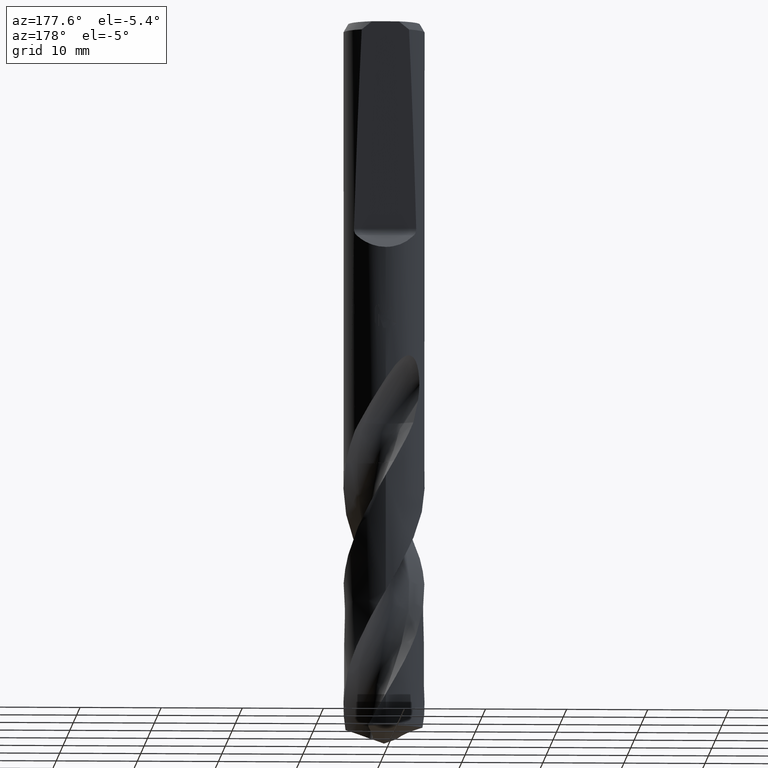
[diagram: clean part render]
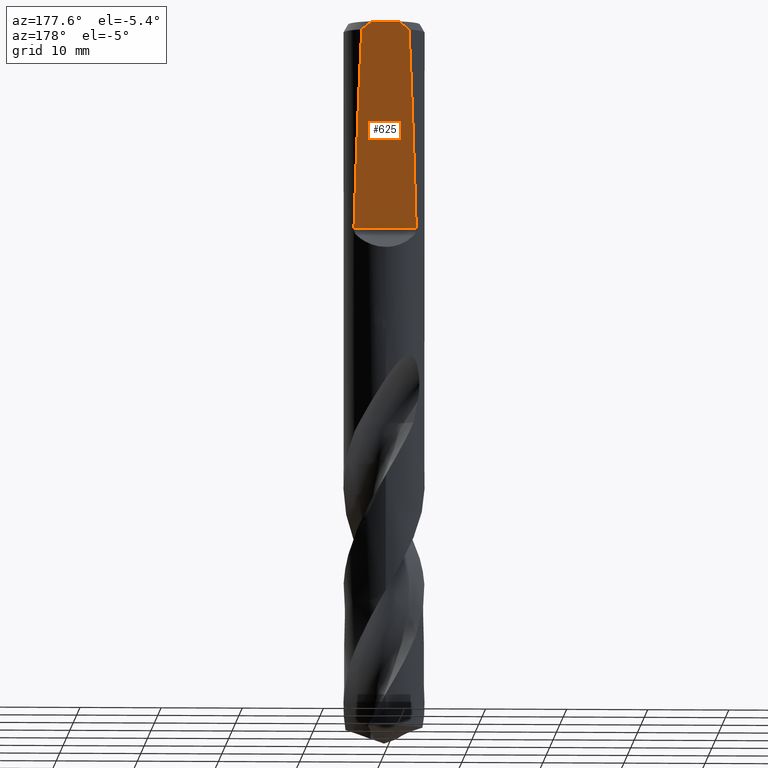
[diagram: same view with one face highlighted and labeled with its STEP entity id]
A machine part, auxiliary view. The second image highlights one B-rep face of the part: STEP entity #625.
In plain terms, the highlighted planar face has unit normal (0, -0.9994, 0.0349).
Its self-contained STEP definition (entity closure, byte-faithful):
#305=EDGE_CURVE('',#381,#743,#836,.T.);
#349=EDGE_CURVE('',#543,#563,#885,.T.);
#363=EDGE_CURVE('',#695,#543,#902,.T.);
#381=VERTEX_POINT('',#921);
#485=VERTEX_POINT('',#1038);
#543=VERTEX_POINT('',#1097);
#563=VERTEX_POINT('',#1117);
#589=EDGE_CURVE('',#743,#695,#1146,.T.);
#607=EDGE_CURVE('',#563,#485,#1168,.T.);
#617=EDGE_CURVE('',#485,#381,#1179,.T.);
#625=ADVANCED_FACE('',(#1189),#1190,.F.);
#695=VERTEX_POINT('',#1265);
#743=VERTEX_POINT('',#1316);
#836=LINE('',#1447,#1448);
#885=LINE('',#2118,#2119);
#902=(B_SPLINE_CURVE(2,(#2628,#2629,#2630),.UNSPECIFIED.,.F.,.F.)B_SPLINE_CURVE_WITH_KNOTS((3,3),(0.0,1.60437353928791),.UNSPECIFIED.)RATIONAL_B_SPLINE_CURVE((1.0,1.00802725721497,1.0))BOUNDED_CURVE()REPRESENTATION_ITEM('')GEOMETRIC_REPRESENTATION_ITEM()CURVE());
#921=CARTESIAN_POINT('',(-3.83705374969661,3.20577892593035,-25.5617638699384));
#1038=CARTESIAN_POINT('',(-2.91341920609476,4.0634946203432,-1.0));
#1097=CARTESIAN_POINT('',(1.66217385787441,4.09841538983495,0.0));
#1117=CARTESIAN_POINT('',(-1.66217385787441,4.09841538983495,0.0));
#1146=ELLIPSE('',#5453,143.26854173922,5.0);
#1168=(B_SPLINE_CURVE(2,(#6405,#6406,#6407),.UNSPECIFIED.,.F.,.F.)B_SPLINE_CURVE_WITH_KNOTS((3,3),(0.0,1.60437353928791),.UNSPECIFIED.)RATIONAL_B_SPLINE_CURVE((1.0,1.00802725721497,1.0))BOUNDED_CURVE()REPRESENTATION_ITEM('')GEOMETRIC_REPRESENTATION_ITEM()CURVE());
#1179=ELLIPSE('',#6510,143.26854173922,5.0);
#1189=FACE_OUTER_BOUND('',#6521,.T.);
#1190=PLANE('',#6522);
#1265=CARTESIAN_POINT('',(2.91341920609476,4.0634946203432,-1.0));
#1316=CARTESIAN_POINT('',(3.83705374969661,3.20577892593035,-25.5617638699384));
#1447=CARTESIAN_POINT('',(-5.0,3.20577892593035,-25.5617638699384));
#1448=VECTOR('',#7668,0.999999999999999);
#2118=CARTESIAN_POINT('',(-2.5,4.09841538983495,1.77635683940025E-015));
#2119=VECTOR('',#7731,1.0);
#2628=CARTESIAN_POINT('',(2.91341920609476,4.0634946203432,-0.999999999999998));
#2629=CARTESIAN_POINT('',(2.25150463839306,4.08572973590232,-0.36326959907412));
#2630=CARTESIAN_POINT('',(1.66217385787441,4.09841538983495,1.99840144432528E-015));
#5453=AXIS2_PLACEMENT_3D('',#7973,#7974,#7975);
#6405=CARTESIAN_POINT('',(-1.66217385787441,4.09841538983495,1.99840144432528E-015));
#6406=CARTESIAN_POINT('',(-2.25150463839306,4.08572973590232,-0.36326959907412));
#6407=CARTESIAN_POINT('',(-2.91341920609476,4.0634946203432,-0.999999999999998));
#6510=AXIS2_PLACEMENT_3D('',#8037,#8038,#8039);
#6521=EDGE_LOOP('',(#8058,#8059,#8060,#8061,#8062,#8063));
#6522=AXIS2_PLACEMENT_3D('',#8064,#8065,#8066);
#7668=DIRECTION('',(1.0,0.0,0.0));
#7731=DIRECTION('',(-1.0,0.0,0.0));
#7973=CARTESIAN_POINT('',(0.0,0.0,-117.363261161914));
#7974=DIRECTION('',(0.0,-0.999390827019096,0.0348994967025007));
#7975=DIRECTION('',(0.0,0.0348994967025007,0.999390827019096));
#8037=CARTESIAN_POINT('',(0.0,0.0,-117.363261161914));
#8038=DIRECTION('',(0.0,-0.999390827019096,0.0348994967025007));
#8039=DIRECTION('',(0.0,0.0348994967025007,0.999390827019096));
#8058=ORIENTED_EDGE('',*,*,#617,.F.);
#8059=ORIENTED_EDGE('',*,*,#607,.F.);
#8060=ORIENTED_EDGE('',*,*,#349,.F.);
#8061=ORIENTED_EDGE('',*,*,#363,.F.);
#8062=ORIENTED_EDGE('',*,*,#589,.F.);
#8063=ORIENTED_EDGE('',*,*,#305,.F.);
#8064=CARTESIAN_POINT('',(-5.0,3.20577892593035,-25.5617638699384));
#8065=DIRECTION('',(0.0,-0.999390827019096,0.0348994967025007));
#8066=DIRECTION('',(0.0,-0.0348994967025007,-0.999390827019096));